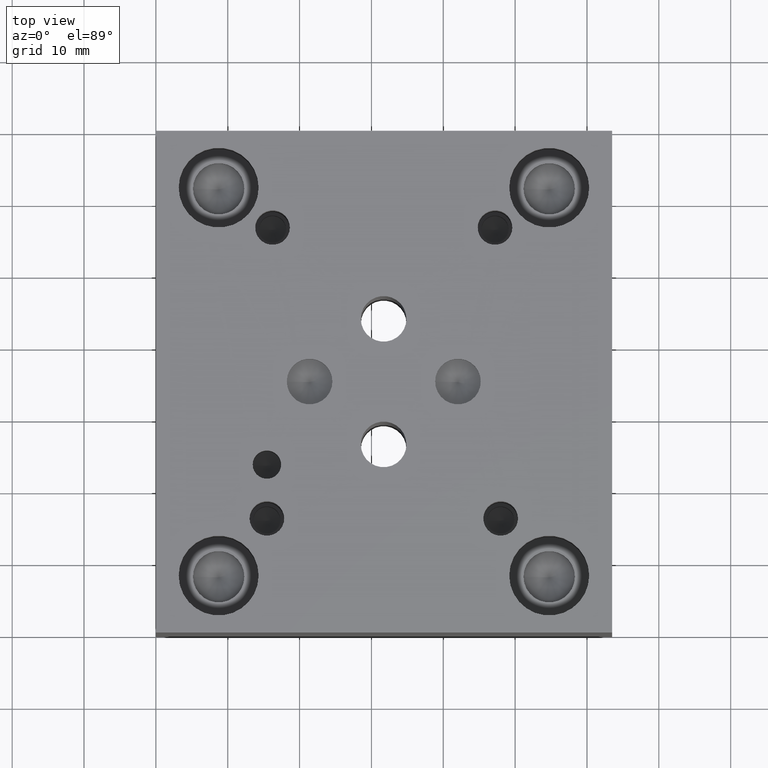
[diagram: clean part render]
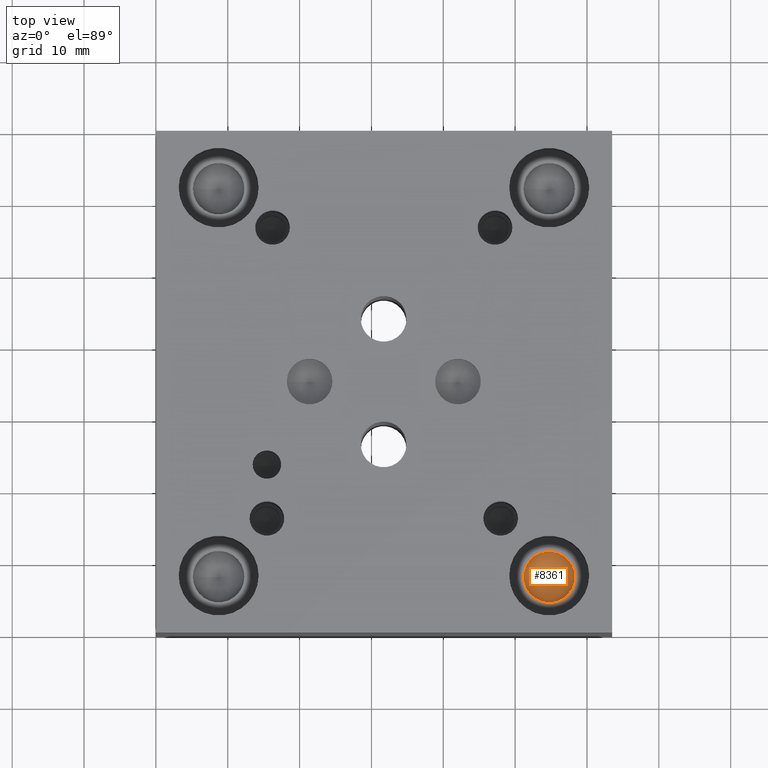
[diagram: same view with one face highlighted and labeled with its STEP entity id]
A machine part, top view. The second image highlights one B-rep face of the part: STEP entity #8361.
In plain terms, the highlighted conical surface has half-angle 60 deg.
Its self-contained STEP definition (entity closure, byte-faithful):
#23=CONICAL_SURFACE('',#8775,1.78435,1.0471975511966);
#97=CIRCLE('',#8776,3.5687);
#98=CIRCLE('',#8777,3.5687);
#916=FACE_OUTER_BOUND('',#1382,.T.);
#1382=EDGE_LOOP('',(#7133,#7134,#7135,#7136));
#2256=LINE('',#13961,#3097);
#3097=VECTOR('',#10408,1.78435);
#3847=VERTEX_POINT('',#13957);
#3848=VERTEX_POINT('',#13958);
#3849=VERTEX_POINT('',#13960);
#4970=EDGE_CURVE('',#3847,#3848,#97,.T.);
#4971=EDGE_CURVE('',#3848,#3849,#2256,.T.);
#4972=EDGE_CURVE('',#3848,#3847,#98,.T.);
#7133=ORIENTED_EDGE('',*,*,#4970,.T.);
#7134=ORIENTED_EDGE('',*,*,#4971,.T.);
#7135=ORIENTED_EDGE('',*,*,#4971,.F.);
#7136=ORIENTED_EDGE('',*,*,#4972,.T.);
#8361=ADVANCED_FACE('',(#916),#23,.F.);
#8775=AXIS2_PLACEMENT_3D('',#13956,#10404,#10405);
#8776=AXIS2_PLACEMENT_3D('',#13959,#10406,#10407);
#8777=AXIS2_PLACEMENT_3D('',#13962,#10409,#10410);
#10404=DIRECTION('center_axis',(0.,0.,1.));
#10405=DIRECTION('ref_axis',(1.,0.,0.));
#10406=DIRECTION('center_axis',(0.,0.,1.));
#10407=DIRECTION('ref_axis',(1.,0.,0.));
#10408=DIRECTION('',(0.866025403784439,1.06057523872491E-16,-0.5));
#10409=DIRECTION('center_axis',(0.,0.,1.));
#10410=DIRECTION('ref_axis',(1.,0.,0.));
#13956=CARTESIAN_POINT('Origin',(54.737,7.9248,25.4844150471715));
#13957=CARTESIAN_POINT('',(58.3057,7.9248,26.51461));
#13958=CARTESIAN_POINT('',(51.1683,7.9248,26.51461));
#13959=CARTESIAN_POINT('Origin',(54.737,7.9248,26.51461));
#13960=CARTESIAN_POINT('',(54.737,7.9248,24.454220094343));
#13961=CARTESIAN_POINT('',(52.95265,7.9248,25.4844150471715));
#13962=CARTESIAN_POINT('Origin',(54.737,7.9248,26.51461));